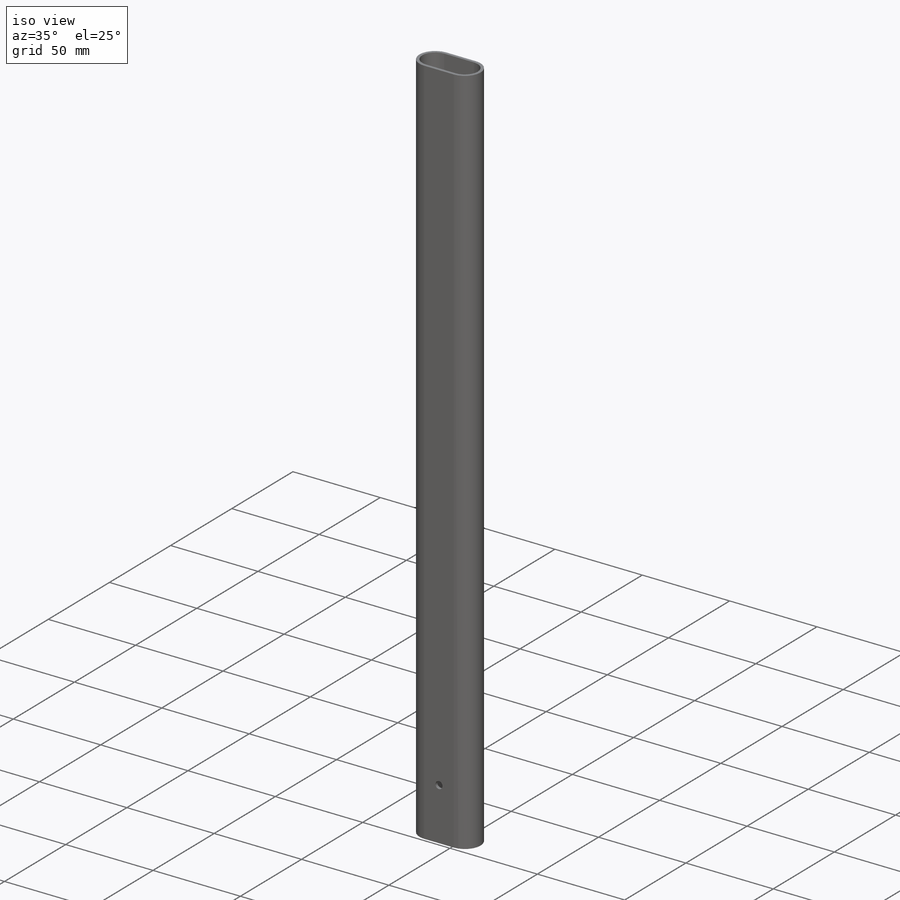
[diagram: iso view]
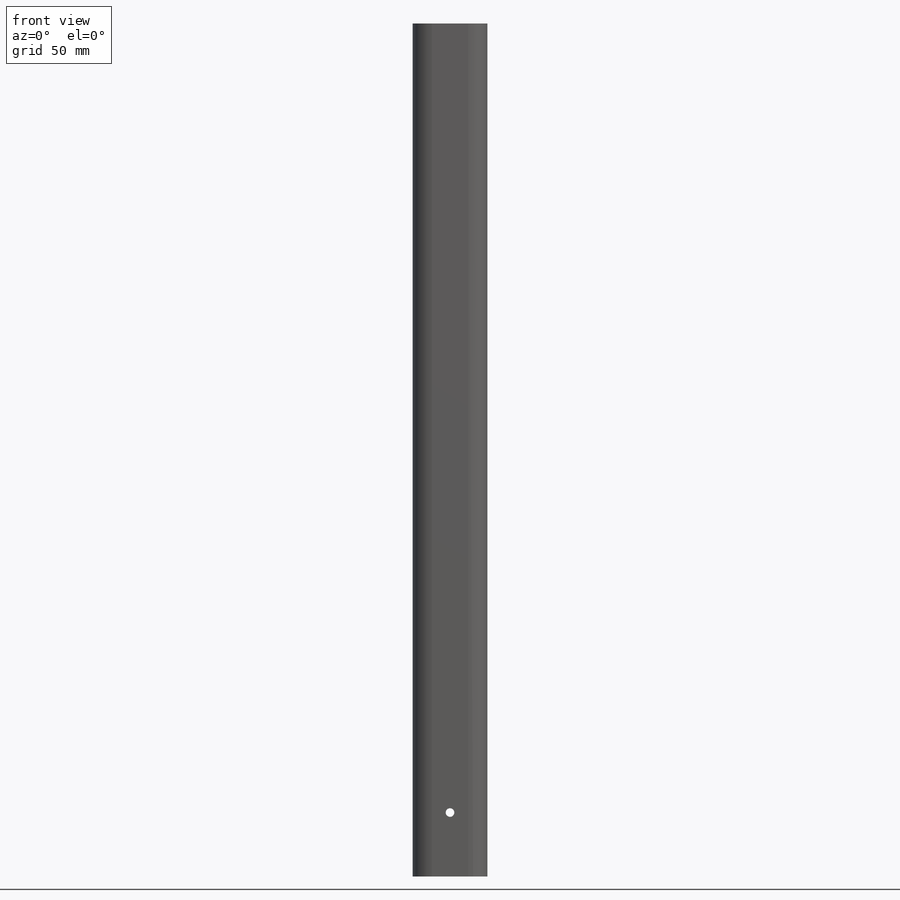
[diagram: front view]
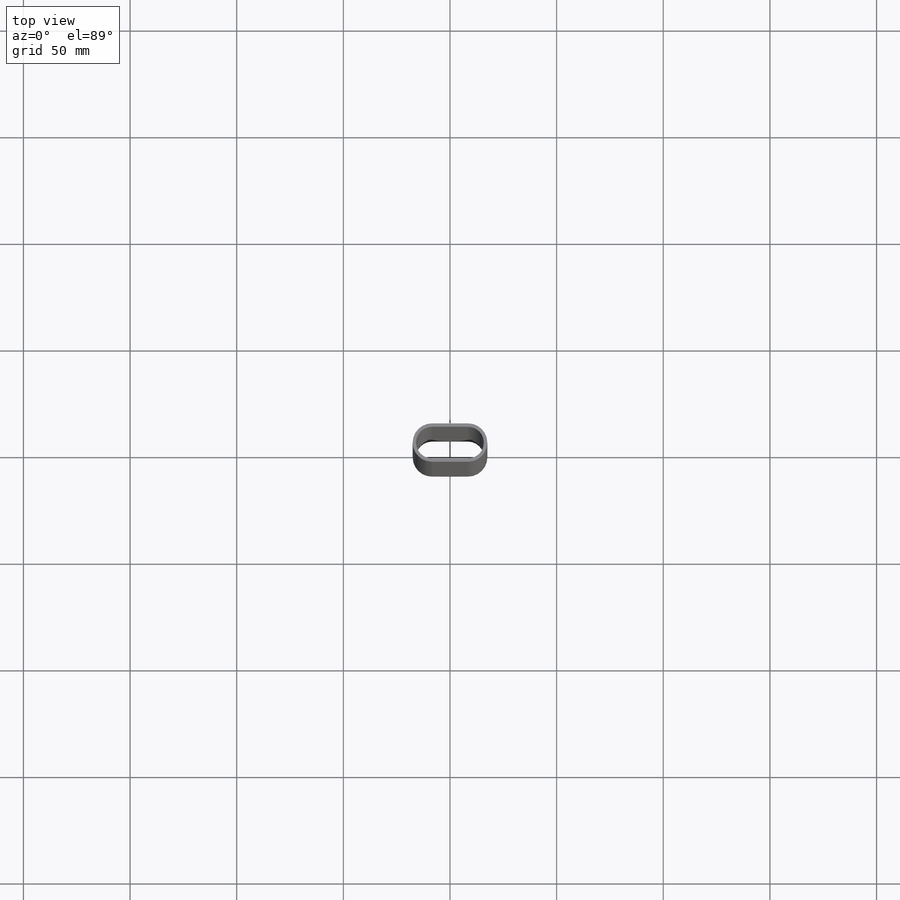
[diagram: top view]
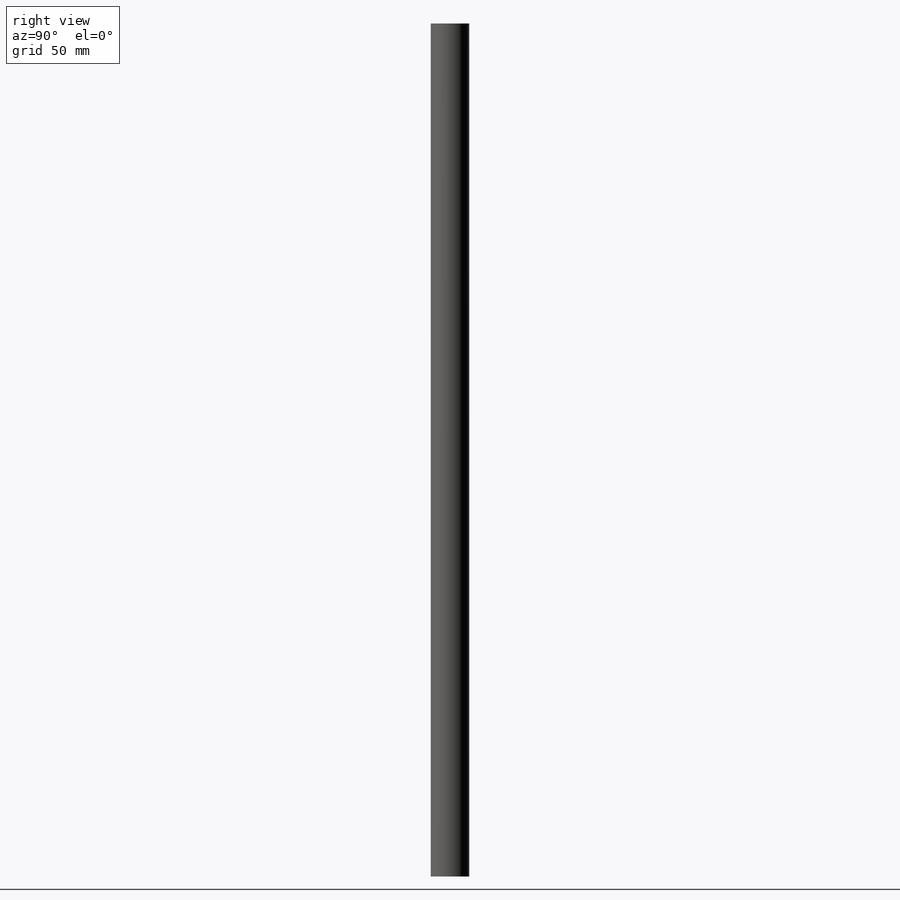
[diagram: right view]
SOLIDWORKS PART (.sldprt)
format: sldprt  version: not decoded by parser v0  size: 169,472 bytes
history: native  units: mm
features: thread x4, plane x3, sketch x3, material x1, extrude x1, hole x1 (+8 scaffold rows collapsed)
feature tree (21):
  scaffold x8  (default folders/planes/origin — collapsed)
  material  "Material <not specified>"
  plane  "前基準面"
  plane  "上基準面"
  plane  "右基準面"
  sketch  "草圖1"  dims[c1.D4=9.0mm c1.D5=9.0mm c1.D1=25.0mm c1.D2=20.0mm c2.D1=17.0mm c2.D2=18.0mm c2.D3=1.6mm]
  extrude  "填料-伸長1"  Depth=400mm
  hole  "#10-32 螺紋孔1"  [1 undecoded]
  sketch  "草圖3"  dims[D1=30.0mm D2=15.0mm D3=15.0mm D4=15.0mm]
  sketch  "草圖4"  dims[hole-wizard template sketch: 60 standard entries collapsed; hole parameters kept: c18.貫穿螺孔鑽深度=18.0mm]
  thread  "鑽孔螺紋1"  Diameter=4.826mm  [1 undecoded]
  thread  "鑽孔螺紋2"  Diameter=4.826mm  [1 undecoded]
  thread  "鑽孔螺紋3"  Diameter=4.826mm  [1 undecoded]
  thread  "鑽孔螺紋4"  Diameter=4.826mm  [1 undecoded]
decode coverage: 8 of 9 modeling features carry decoded parameters
note: ~ marks probable driven/reference dimensions
note: 5 parameter values undecoded
note: suppression state not decoded; provenance and decode notes live in map.json
